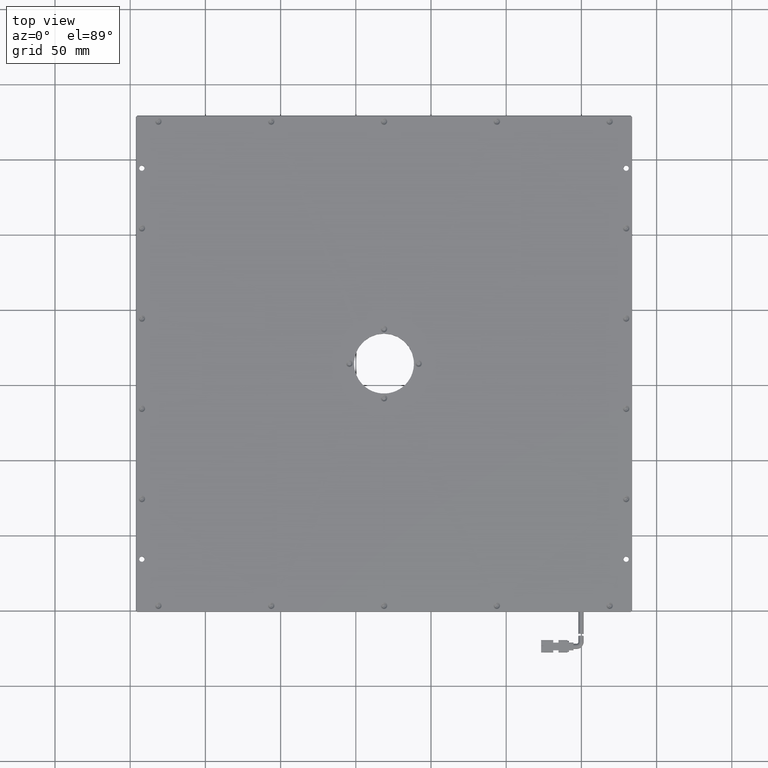
[diagram: clean part render]
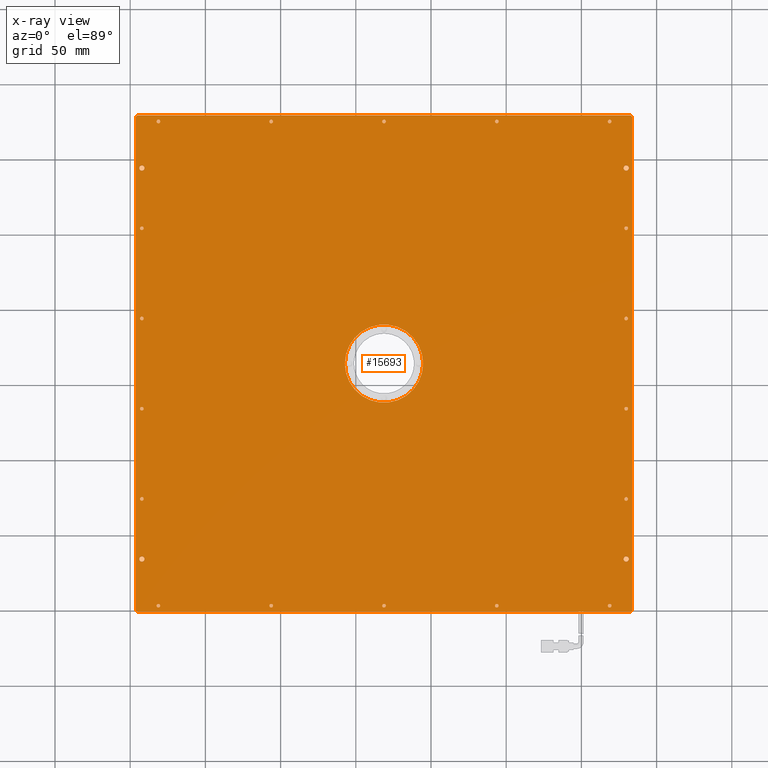
[diagram: x-ray — body ghosted, one internal face saturated and labeled with its STEP entity id]
A machine part, top view, then the same camera in x-ray: the body is ghosted and one INTERNAL B-rep face — a face not visible from any outside direction — is saturated and labeled: STEP entity #15693.
In plain terms, the highlighted planar face has unit normal (0, -0, 1).
Its self-contained STEP definition (entity closure, byte-faithful):
#39 = DIRECTION ( 'NONE',  ( 0.0000000000000000000, 0.0000000000000000000, -1.000000000000000000 ) ) ;
#62 = EDGE_CURVE ( 'NONE', #1056, #24851, #12106, .T. ) ;
#197 = VERTEX_POINT ( 'NONE', #13374 ) ;
#223 = EDGE_CURVE ( 'NONE', #22571, #25613, #29283, .T. ) ;
#523 = FACE_BOUND ( 'NONE', #15671, .T. ) ;
#592 = DIRECTION ( 'NONE',  ( 1.000000000000000000, 0.0000000000000000000, 0.0000000000000000000 ) ) ;
#633 = CIRCLE ( 'NONE', #14719, 1.199999999999978900 ) ;
#697 = CARTESIAN_POINT ( 'NONE',  ( 129.7560923609355300, 94.30657404790598300, 8.000000000019095800 ) ) ;
#736 = AXIS2_PLACEMENT_3D ( 'NONE', #4397, #9231, #9345 ) ;
#917 = ORIENTED_EDGE ( 'NONE', *, *, #9125, .F. ) ;
#962 = DIRECTION ( 'NONE',  ( 1.000000000000000000, 0.0000000000000000000, 0.0000000000000000000 ) ) ;
#981 = EDGE_CURVE ( 'NONE', #26956, #19501, #9583, .T. ) ;
#1056 = VERTEX_POINT ( 'NONE', #27537 ) ;
#1179 = ORIENTED_EDGE ( 'NONE', *, *, #21258, .F. ) ;
#1290 = CIRCLE ( 'NONE', #13173, 1.799999999999996000 ) ;
#1330 = AXIS2_PLACEMENT_3D ( 'NONE', #5066, #2719, #22952 ) ;
#1397 = CARTESIAN_POINT ( 'NONE',  ( 131.5560923609355100, 194.3065740479059700, 8.000000000019099400 ) ) ;
#1399 = CARTESIAN_POINT ( 'NONE',  ( 133.7560923609355300, -99.69342595209396100, 8.000000000019097600 ) ) ;
#1493 = CIRCLE ( 'NONE', #26639, 1.799999999999968300 ) ;
#1548 = CIRCLE ( 'NONE', #24315, 1.199999999999978900 ) ;
#1680 = EDGE_CURVE ( 'NONE', #25613, #22571, #28287, .T. ) ;
#1722 = DIRECTION ( 'NONE',  ( 1.000000000000000000, 0.0000000000000000000, 0.0000000000000000000 ) ) ;
#1789 = EDGE_LOOP ( 'NONE', ( #15808, #22513 ) ) ;
#1811 = DIRECTION ( 'NONE',  ( 0.0000000000000000000, 0.0000000000000000000, -1.000000000000000000 ) ) ;
#1901 = CARTESIAN_POINT ( 'NONE',  ( -195.2439076390644500, -100.6934259520940000, 8.000000000019097600 ) ) ;
#1928 = AXIS2_PLACEMENT_3D ( 'NONE', #31423, #13516, #29215 ) ;
#1938 = VERTEX_POINT ( 'NONE', #7246 ) ;
#1987 = DIRECTION ( 'NONE',  ( 1.000000000000000000, 0.0000000000000000000, 0.0000000000000000000 ) ) ;
#2059 = VERTEX_POINT ( 'NONE', #14988 ) ;
#2142 = ORIENTED_EDGE ( 'NONE', *, *, #3246, .F. ) ;
#2177 = AXIS2_PLACEMENT_3D ( 'NONE', #27355, #27257, #21929 ) ;
#2251 = DIRECTION ( 'NONE',  ( 1.000000000000000000, 0.0000000000000000000, 0.0000000000000000000 ) ) ;
#2397 = CIRCLE ( 'NONE', #19446, 1.199999999999978900 ) ;
#2454 = ORIENTED_EDGE ( 'NONE', *, *, #14842, .F. ) ;
#2562 = AXIS2_PLACEMENT_3D ( 'NONE', #18234, #15857, #23401 ) ;
#2602 = CARTESIAN_POINT ( 'NONE',  ( 129.7560923609355300, 154.3065740479060000, 8.000000000019095800 ) ) ;
#2605 = AXIS2_PLACEMENT_3D ( 'NONE', #22925, #20659, #7640 ) ;
#2719 = DIRECTION ( 'NONE',  ( 0.0000000000000000000, 0.0000000000000000000, -1.000000000000000000 ) ) ;
#2825 = ORIENTED_EDGE ( 'NONE', *, *, #30887, .F. ) ;
#2942 = CARTESIAN_POINT ( 'NONE',  ( 129.7560923609355300, 194.3065740479059700, 8.000000000019099400 ) ) ;
#3017 = VECTOR ( 'NONE', #24300, 1000.000000000000100 ) ;
#3075 = VECTOR ( 'NONE', #11556, 1000.000000000000100 ) ;
#3112 = CIRCLE ( 'NONE', #29573, 1.199999999999992600 ) ;
#3225 = LINE ( 'NONE', #15989, #6077 ) ;
#3246 = EDGE_CURVE ( 'NONE', #12818, #2059, #10815, .T. ) ;
#3249 = AXIS2_PLACEMENT_3D ( 'NONE', #17131, #30080, #1722 ) ;
#3386 = EDGE_CURVE ( 'NONE', #5937, #10006, #11624, .T. ) ;
#3392 = ORIENTED_EDGE ( 'NONE', *, *, #33149, .F. ) ;
#3484 = EDGE_CURVE ( 'NONE', #29194, #11254, #3579, .T. ) ;
#3491 = EDGE_LOOP ( 'NONE', ( #5932, #19338, #18920, #9190, #27096, #2825, #4488, #27738 ) ) ;
#3555 = CARTESIAN_POINT ( 'NONE',  ( -32.44390763906449100, -96.69342595209404600, 8.000000000019095800 ) ) ;
#3579 = CIRCLE ( 'NONE', #4724, 1.199999999999978900 ) ;
#3598 = EDGE_CURVE ( 'NONE', #16537, #11574, #3112, .T. ) ;
#3695 = EDGE_LOOP ( 'NONE', ( #19024, #13416 ) ) ;
#3709 = VERTEX_POINT ( 'NONE', #29868 ) ;
#3734 = VERTEX_POINT ( 'NONE', #17351 ) ;
#3742 = CIRCLE ( 'NONE', #17016, 1.199999999999992600 ) ;
#3782 = CIRCLE ( 'NONE', #16139, 1.199999999999978900 ) ;
#3879 = VERTEX_POINT ( 'NONE', #4642 ) ;
#4057 = ORIENTED_EDGE ( 'NONE', *, *, #14169, .F. ) ;
#4107 = AXIS2_PLACEMENT_3D ( 'NONE', #17916, #23074, #25836 ) ;
#4155 = DIRECTION ( 'NONE',  ( 0.0000000000000000000, 0.0000000000000000000, -1.000000000000000000 ) ) ;
#4171 = CIRCLE ( 'NONE', #1330, 1.199999999999978900 ) ;
#4173 = CARTESIAN_POINT ( 'NONE',  ( -192.2439076390644700, -65.69342595209401700, 8.000000000019099400 ) ) ;
#4180 = FACE_BOUND ( 'NONE', #16607, .T. ) ;
#4226 = DIRECTION ( 'NONE',  ( 0.0000000000000000000, 0.0000000000000000000, -1.000000000000000000 ) ) ;
#4261 = CARTESIAN_POINT ( 'NONE',  ( 133.7560923609355300, -100.6934259520940200, 8.000000000019099400 ) ) ;
#4286 = DIRECTION ( 'NONE',  ( 1.000000000000000000, 0.0000000000000000000, 0.0000000000000000000 ) ) ;
#4361 = VERTEX_POINT ( 'NONE', #11466 ) ;
#4383 = VECTOR ( 'NONE', #15660, 1000.000000000000000 ) ;
#4397 = CARTESIAN_POINT ( 'NONE',  ( 129.7560923609355300, 34.30657404790599000, 8.000000000019095800 ) ) ;
#4410 = DIRECTION ( 'NONE',  ( 1.000000000000000000, 0.0000000000000000000, 0.0000000000000000000 ) ) ;
#4448 = AXIS2_PLACEMENT_3D ( 'NONE', #27133, #4155, #19432 ) ;
#4461 = CARTESIAN_POINT ( 'NONE',  ( 127.9560923609355300, 194.3065740479059700, 8.000000000019099400 ) ) ;
#4488 = ORIENTED_EDGE ( 'NONE', *, *, #17045, .T. ) ;
#4531 = LINE ( 'NONE', #27157, #31340 ) ;
#4537 = DIRECTION ( 'NONE',  ( 0.0000000000000000000, 0.0000000000000000000, -1.000000000000000000 ) ) ;
#4621 = CARTESIAN_POINT ( 'NONE',  ( 42.55609236093550900, -96.69342595209403200, 8.000000000019095800 ) ) ;
#4642 = CARTESIAN_POINT ( 'NONE',  ( -191.0439076390645100, 94.30657404790598300, 8.000000000019095800 ) ) ;
#4724 = AXIS2_PLACEMENT_3D ( 'NONE', #10951, #18592, #5768 ) ;
#4764 = CIRCLE ( 'NONE', #24938, 1.199999999999978900 ) ;
#4776 = CARTESIAN_POINT ( 'NONE',  ( -30.04390763906447500, 225.3065740479060500, 8.000000000019095800 ) ) ;
#4924 = AXIS2_PLACEMENT_3D ( 'NONE', #10123, #5174, #30301 ) ;
#4964 = FACE_BOUND ( 'NONE', #30370, .T. ) ;
#5011 = EDGE_CURVE ( 'NONE', #13324, #26935, #8265, .T. ) ;
#5066 = CARTESIAN_POINT ( 'NONE',  ( -181.2439076390644700, 225.3065740479060500, 8.000000000019095800 ) ) ;
#5174 = DIRECTION ( 'NONE',  ( 0.0000000000000000000, 0.0000000000000000000, -1.000000000000000000 ) ) ;
#5223 = VERTEX_POINT ( 'NONE', #6600 ) ;
#5230 = CARTESIAN_POINT ( 'NONE',  ( 117.5560923609355200, 225.3065740479061100, 8.000000000019095800 ) ) ;
#5264 = VERTEX_POINT ( 'NONE', #27517 ) ;
#5343 = CARTESIAN_POINT ( 'NONE',  ( -192.2439076390644700, 94.30657404790598300, 8.000000000019095800 ) ) ;
#5377 = CARTESIAN_POINT ( 'NONE',  ( -180.0439076390644900, -96.69342595209407400, 8.000000000019095800 ) ) ;
#5380 = FACE_BOUND ( 'NONE', #24946, .T. ) ;
#5408 = EDGE_CURVE ( 'NONE', #22257, #3879, #17853, .T. ) ;
#5553 = AXIS2_PLACEMENT_3D ( 'NONE', #13527, #6018, #592 ) ;
#5592 = CARTESIAN_POINT ( 'NONE',  ( 133.7560923609355300, 229.3065740479060500, 8.000000000019099400 ) ) ;
#5690 = EDGE_CURVE ( 'NONE', #5223, #32564, #26159, .T. ) ;
#5733 = ORIENTED_EDGE ( 'NONE', *, *, #27626, .F. ) ;
#5749 = VERTEX_POINT ( 'NONE', #24590 ) ;
#5768 = DIRECTION ( 'NONE',  ( 1.000000000000000000, 0.0000000000000000000, 0.0000000000000000000 ) ) ;
#5771 = FACE_BOUND ( 'NONE', #25762, .T. ) ;
#5855 = CIRCLE ( 'NONE', #8639, 1.799999999999968300 ) ;
#5932 = ORIENTED_EDGE ( 'NONE', *, *, #24744, .T. ) ;
#5937 = VERTEX_POINT ( 'NONE', #20106 ) ;
#5996 = CARTESIAN_POINT ( 'NONE',  ( 133.7560923609355300, 229.3065740479060500, 8.000000000019099400 ) ) ;
#6018 = DIRECTION ( 'NONE',  ( 0.0000000000000000000, 0.0000000000000000000, -1.000000000000000000 ) ) ;
#6077 = VECTOR ( 'NONE', #26380, 1000.000000000000000 ) ;
#6133 = DIRECTION ( 'NONE',  ( 1.000000000000000000, 0.0000000000000000000, 0.0000000000000000000 ) ) ;
#6194 = ORIENTED_EDGE ( 'NONE', *, *, #7385, .F. ) ;
#6240 = DIRECTION ( 'NONE',  ( 0.0000000000000000000, -0.0000000000000000000, 1.000000000000000000 ) ) ;
#6263 = DIRECTION ( 'NONE',  ( 0.0000000000000000000, 0.0000000000000000000, -1.000000000000000000 ) ) ;
#6600 = CARTESIAN_POINT ( 'NONE',  ( -190.4439076390645200, 194.3065740479059700, 8.000000000019099400 ) ) ;
#6628 = AXIS2_PLACEMENT_3D ( 'NONE', #5343, #39, #25527 ) ;
#6725 = ORIENTED_EDGE ( 'NONE', *, *, #21776, .F. ) ;
#6844 = DIRECTION ( 'NONE',  ( 1.000000000000000000, 0.0000000000000000000, 0.0000000000000000000 ) ) ;
#6928 = ORIENTED_EDGE ( 'NONE', *, *, #25443, .F. ) ;
#6983 = DIRECTION ( 'NONE',  ( 0.0000000000000000000, 0.0000000000000000000, -1.000000000000000000 ) ) ;
#6997 = ORIENTED_EDGE ( 'NONE', *, *, #24396, .F. ) ;
#7030 = CARTESIAN_POINT ( 'NONE',  ( 43.75609236093549700, 225.3065740479061100, 8.000000000019095800 ) ) ;
#7246 = CARTESIAN_POINT ( 'NONE',  ( -190.4439076390645200, -65.69342595209401700, 8.000000000019099400 ) ) ;
#7254 = CARTESIAN_POINT ( 'NONE',  ( -192.2439076390644700, 194.3065740479059700, 8.000000000019099400 ) ) ;
#7318 = CARTESIAN_POINT ( 'NONE',  ( -31.24390763906448100, 225.3065740479060500, 8.000000000019095800 ) ) ;
#7385 = EDGE_CURVE ( 'NONE', #30799, #32704, #633, .T. ) ;
#7484 = DIRECTION ( 'NONE',  ( 1.000000000000000000, 0.0000000000000000000, 0.0000000000000000000 ) ) ;
#7562 = EDGE_CURVE ( 'NONE', #11384, #24082, #17691, .T. ) ;
#7640 = DIRECTION ( 'NONE',  ( 1.000000000000000000, 0.0000000000000000000, 0.0000000000000000000 ) ) ;
#7673 = LINE ( 'NONE', #4261, #28922 ) ;
#7886 = EDGE_LOOP ( 'NONE', ( #2142, #5733 ) ) ;
#7955 = ORIENTED_EDGE ( 'NONE', *, *, #20569, .F. ) ;
#8116 = DIRECTION ( 'NONE',  ( 0.0000000000000000000, 0.0000000000000000000, -1.000000000000000000 ) ) ;
#8235 = AXIS2_PLACEMENT_3D ( 'NONE', #13967, #13629, #26511 ) ;
#8265 = CIRCLE ( 'NONE', #28336, 1.199999999999978900 ) ;
#8432 = EDGE_LOOP ( 'NONE', ( #26321, #6928 ) ) ;
#8586 = EDGE_CURVE ( 'NONE', #31823, #10185, #12348, .T. ) ;
#8599 = ORIENTED_EDGE ( 'NONE', *, *, #14362, .F. ) ;
#8636 = DIRECTION ( 'NONE',  ( 0.0000000000000000000, 0.0000000000000000000, -1.000000000000000000 ) ) ;
#8639 = AXIS2_PLACEMENT_3D ( 'NONE', #4173, #27357, #4286 ) ;
#8730 = LINE ( 'NONE', #24330, #3075 ) ;
#8873 = AXIS2_PLACEMENT_3D ( 'NONE', #2602, #12509, #22830 ) ;
#8967 = EDGE_CURVE ( 'NONE', #24082, #11384, #11118, .T. ) ;
#9069 = VERTEX_POINT ( 'NONE', #17404 ) ;
#9125 = EDGE_CURVE ( 'NONE', #3879, #22257, #15477, .T. ) ;
#9190 = ORIENTED_EDGE ( 'NONE', *, *, #25506, .F. ) ;
#9200 = DIRECTION ( 'NONE',  ( 1.000000000000000000, 0.0000000000000000000, 0.0000000000000000000 ) ) ;
#9231 = DIRECTION ( 'NONE',  ( 0.0000000000000000000, 0.0000000000000000000, -1.000000000000000000 ) ) ;
#9345 = DIRECTION ( 'NONE',  ( 1.000000000000000000, 0.0000000000000000000, 0.0000000000000000000 ) ) ;
#9412 = FACE_BOUND ( 'NONE', #15360, .T. ) ;
#9469 = AXIS2_PLACEMENT_3D ( 'NONE', #30441, #30331, #1987 ) ;
#9526 = CIRCLE ( 'NONE', #18648, 1.799999999999996000 ) ;
#9556 = DIRECTION ( 'NONE',  ( 0.0000000000000000000, 0.0000000000000000000, -1.000000000000000000 ) ) ;
#9583 = CIRCLE ( 'NONE', #32649, 1.200000000000006600 ) ;
#9598 = VERTEX_POINT ( 'NONE', #1397 ) ;
#9727 = ORIENTED_EDGE ( 'NONE', *, *, #19136, .F. ) ;
#9842 = DIRECTION ( 'NONE',  ( 0.0000000000000000000, 0.0000000000000000000, -1.000000000000000000 ) ) ;
#9874 = DIRECTION ( 'NONE',  ( 1.000000000000000000, 0.0000000000000000000, 0.0000000000000000000 ) ) ;
#9919 = DIRECTION ( 'NONE',  ( 1.000000000000000000, 0.0000000000000000000, 0.0000000000000000000 ) ) ;
#10006 = VERTEX_POINT ( 'NONE', #17406 ) ;
#10123 = CARTESIAN_POINT ( 'NONE',  ( -192.2439076390644700, -25.69342595209400700, 8.000000000019095800 ) ) ;
#10128 = EDGE_CURVE ( 'NONE', #31076, #15628, #10921, .T. ) ;
#10154 = ORIENTED_EDGE ( 'NONE', *, *, #15746, .F. ) ;
#10169 = CARTESIAN_POINT ( 'NONE',  ( -181.2439076390644700, -96.69342595209407400, 8.000000000019095800 ) ) ;
#10185 = VERTEX_POINT ( 'NONE', #16243 ) ;
#10220 = AXIS2_PLACEMENT_3D ( 'NONE', #23172, #28276, #28614 ) ;
#10274 = VERTEX_POINT ( 'NONE', #13883 ) ;
#10410 = CARTESIAN_POINT ( 'NONE',  ( 130.9560923609354900, 154.3065740479060000, 8.000000000019095800 ) ) ;
#10435 = DIRECTION ( 'NONE',  ( -1.000000000000000000, -0.0000000000000000000, 0.0000000000000000000 ) ) ;
#10514 = EDGE_CURVE ( 'NONE', #18546, #23287, #27565, .T. ) ;
#10609 = FACE_BOUND ( 'NONE', #26845, .T. ) ;
#10621 = EDGE_CURVE ( 'NONE', #19946, #1938, #1493, .T. ) ;
#10651 = CIRCLE ( 'NONE', #2605, 1.199999999999978900 ) ;
#10671 = CARTESIAN_POINT ( 'NONE',  ( 132.7560923609354700, 229.3065740479060500, 8.000000000019097600 ) ) ;
#10815 = CIRCLE ( 'NONE', #9469, 1.199999999999978900 ) ;
#10816 = EDGE_LOOP ( 'NONE', ( #6194, #14503 ) ) ;
#10839 = ORIENTED_EDGE ( 'NONE', *, *, #62, .F. ) ;
#10921 = CIRCLE ( 'NONE', #5553, 1.200000000000006600 ) ;
#10923 = DIRECTION ( 'NONE',  ( 1.000000000000000000, 0.0000000000000000000, 0.0000000000000000000 ) ) ;
#10951 = CARTESIAN_POINT ( 'NONE',  ( 129.7560923609355300, 94.30657404790598300, 8.000000000019095800 ) ) ;
#10961 = DIRECTION ( 'NONE',  ( -1.000000000000000000, 0.0000000000000000000, 0.0000000000000000000 ) ) ;
#11007 = CIRCLE ( 'NONE', #13783, 1.199999999999978900 ) ;
#11009 = FACE_BOUND ( 'NONE', #29874, .T. ) ;
#11061 = CARTESIAN_POINT ( 'NONE',  ( 42.55609236093550900, 225.3065740479061100, 8.000000000019095800 ) ) ;
#11068 = DIRECTION ( 'NONE',  ( 0.0000000000000000000, 0.0000000000000000000, -1.000000000000000000 ) ) ;
#11118 = CIRCLE ( 'NONE', #14581, 26.00000000000002100 ) ;
#11128 = AXIS2_PLACEMENT_3D ( 'NONE', #14922, #9556, #9874 ) ;
#11140 = CARTESIAN_POINT ( 'NONE',  ( 133.7560923609355300, -99.69342595209396100, 8.000000000019097600 ) ) ;
#11154 = CIRCLE ( 'NONE', #23748, 1.199999999999992600 ) ;
#11254 = VERTEX_POINT ( 'NONE', #27241 ) ;
#11361 = EDGE_CURVE ( 'NONE', #32901, #3709, #19890, .T. ) ;
#11384 = VERTEX_POINT ( 'NONE', #32148 ) ;
#11452 = FACE_BOUND ( 'NONE', #30066, .T. ) ;
#11466 = CARTESIAN_POINT ( 'NONE',  ( -196.2439076390645600, -99.69342595209398900, 8.000000000019097600 ) ) ;
#11556 = DIRECTION ( 'NONE',  ( -0.7071067811865474600, 0.7071067811865474600, 0.0000000000000000000 ) ) ;
#11574 = VERTEX_POINT ( 'NONE', #5230 ) ;
#11609 = LINE ( 'NONE', #13400, #4383 ) ;
#11624 = CIRCLE ( 'NONE', #23657, 1.199999999999978900 ) ;
#11655 = DIRECTION ( 'NONE',  ( -0.7071067811865474600, -0.7071067811865474600, 0.0000000000000000000 ) ) ;
#11670 = ORIENTED_EDGE ( 'NONE', *, *, #22208, .F. ) ;
#11715 = EDGE_LOOP ( 'NONE', ( #12420, #32456 ) ) ;
#11785 = LINE ( 'NONE', #1399, #27378 ) ;
#11838 = FACE_BOUND ( 'NONE', #8432, .T. ) ;
#11926 = ORIENTED_EDGE ( 'NONE', *, *, #19745, .F. ) ;
#12106 = CIRCLE ( 'NONE', #4924, 1.199999999999978900 ) ;
#12149 = AXIS2_PLACEMENT_3D ( 'NONE', #23845, #11068, #26852 ) ;
#12203 = CARTESIAN_POINT ( 'NONE',  ( -106.2439076390644600, 225.3065740479060500, 8.000000000019095800 ) ) ;
#12248 = DIRECTION ( 'NONE',  ( -0.0000000000000000000, -0.0000000000000000000, -1.000000000000000000 ) ) ;
#12343 = CARTESIAN_POINT ( 'NONE',  ( -31.24390763906445700, 64.30657404790599700, 8.000000000019099400 ) ) ;
#12348 = LINE ( 'NONE', #5592, #23575 ) ;
#12420 = ORIENTED_EDGE ( 'NONE', *, *, #981, .F. ) ;
#12509 = DIRECTION ( 'NONE',  ( 0.0000000000000000000, 0.0000000000000000000, -1.000000000000000000 ) ) ;
#12608 = AXIS2_PLACEMENT_3D ( 'NONE', #7030, #4226, #27420 ) ;
#12609 = CARTESIAN_POINT ( 'NONE',  ( -191.0439076390645100, 154.3065740479060000, 8.000000000019095800 ) ) ;
#12818 = VERTEX_POINT ( 'NONE', #12609 ) ;
#12930 = CARTESIAN_POINT ( 'NONE',  ( 130.9560923609354900, -25.69342595209400700, 8.000000000019095800 ) ) ;
#12976 = VERTEX_POINT ( 'NONE', #30945 ) ;
#12979 = DIRECTION ( 'NONE',  ( 1.000000000000000000, 0.0000000000000000000, 0.0000000000000000000 ) ) ;
#13087 = AXIS2_PLACEMENT_3D ( 'NONE', #2942, #8116, #10923 ) ;
#13173 = AXIS2_PLACEMENT_3D ( 'NONE', #19451, #1811, #4410 ) ;
#13266 = CARTESIAN_POINT ( 'NONE',  ( -192.2439076390644700, -65.69342595209401700, 8.000000000019099400 ) ) ;
#13324 = VERTEX_POINT ( 'NONE', #10410 ) ;
#13374 = CARTESIAN_POINT ( 'NONE',  ( 131.5560923609355100, -65.69342595209401700, 8.000000000019099400 ) ) ;
#13400 = CARTESIAN_POINT ( 'NONE',  ( 133.7560923609355300, 229.3065740479060500, 8.000000000019099400 ) ) ;
#13416 = ORIENTED_EDGE ( 'NONE', *, *, #24350, .F. ) ;
#13516 = DIRECTION ( 'NONE',  ( 0.0000000000000000000, 0.0000000000000000000, -1.000000000000000000 ) ) ;
#13527 = CARTESIAN_POINT ( 'NONE',  ( -31.24390763906448100, 225.3065740479060500, 8.000000000019095800 ) ) ;
#13540 = ORIENTED_EDGE ( 'NONE', *, *, #23258, .F. ) ;
#13629 = DIRECTION ( 'NONE',  ( 0.0000000000000000000, 0.0000000000000000000, -1.000000000000000000 ) ) ;
#13758 = DIRECTION ( 'NONE',  ( 1.000000000000000000, 0.0000000000000000000, 0.0000000000000000000 ) ) ;
#13783 = AXIS2_PLACEMENT_3D ( 'NONE', #697, #16336, #6133 ) ;
#13805 = CARTESIAN_POINT ( 'NONE',  ( -31.24390763906448100, -96.69342595209404600, 8.000000000019095800 ) ) ;
#13883 = CARTESIAN_POINT ( 'NONE',  ( -180.0439076390644900, 225.3065740479060500, 8.000000000019095800 ) ) ;
#13967 = CARTESIAN_POINT ( 'NONE',  ( -106.2439076390644600, 225.3065740479060500, 8.000000000019095800 ) ) ;
#14070 = VERTEX_POINT ( 'NONE', #11061 ) ;
#14169 = EDGE_CURVE ( 'NONE', #28700, #5749, #1548, .T. ) ;
#14192 = CIRCLE ( 'NONE', #21827, 1.200000000000006600 ) ;
#14345 = CARTESIAN_POINT ( 'NONE',  ( -194.0439076390644600, 194.3065740479059700, 8.000000000019099400 ) ) ;
#14348 = DIRECTION ( 'NONE',  ( 0.0000000000000000000, 0.0000000000000000000, -1.000000000000000000 ) ) ;
#14362 = EDGE_CURVE ( 'NONE', #23595, #30337, #4764, .T. ) ;
#14500 = ORIENTED_EDGE ( 'NONE', *, *, #11361, .F. ) ;
#14503 = ORIENTED_EDGE ( 'NONE', *, *, #23188, .F. ) ;
#14581 = AXIS2_PLACEMENT_3D ( 'NONE', #12343, #12248, #30128 ) ;
#14719 = AXIS2_PLACEMENT_3D ( 'NONE', #10169, #19970, #7484 ) ;
#14842 = EDGE_CURVE ( 'NONE', #1938, #19946, #5855, .T. ) ;
#14847 = CARTESIAN_POINT ( 'NONE',  ( -191.0439076390645100, -25.69342595209400700, 8.000000000019095800 ) ) ;
#14888 = CARTESIAN_POINT ( 'NONE',  ( -182.4439076390644600, -96.69342595209407400, 8.000000000019095800 ) ) ;
#14922 = CARTESIAN_POINT ( 'NONE',  ( -181.2439076390644700, 225.3065740479060500, 8.000000000019095800 ) ) ;
#14965 = CARTESIAN_POINT ( 'NONE',  ( 129.7560923609355300, 34.30657404790599000, 8.000000000019095800 ) ) ;
#14988 = CARTESIAN_POINT ( 'NONE',  ( -193.4439076390644600, 154.3065740479060000, 8.000000000019095800 ) ) ;
#15023 = FACE_OUTER_BOUND ( 'NONE', #3491, .T. ) ;
#15064 = VERTEX_POINT ( 'NONE', #28666 ) ;
#15069 = DIRECTION ( 'NONE',  ( 0.0000000000000000000, 0.0000000000000000000, -1.000000000000000000 ) ) ;
#15360 = EDGE_LOOP ( 'NONE', ( #29199, #27659 ) ) ;
#15477 = CIRCLE ( 'NONE', #6628, 1.199999999999978900 ) ;
#15628 = VERTEX_POINT ( 'NONE', #28404 ) ;
#15643 = EDGE_CURVE ( 'NONE', #5749, #28700, #33020, .T. ) ;
#15644 = EDGE_LOOP ( 'NONE', ( #7955, #17646 ) ) ;
#15660 = DIRECTION ( 'NONE',  ( 0.0000000000000000000, 1.000000000000000000, 0.0000000000000000000 ) ) ;
#15671 = EDGE_LOOP ( 'NONE', ( #2454, #25062 ) ) ;
#15693 = ADVANCED_FACE ( 'NONE', ( #15023, #11452, #25430, #11838, #9412, #23060, #31039, #10609, #30622, #29845, #4180, #19456, #17850, #29462, #5380, #18261, #11009, #4964, #17053, #5771, #21054, #28633, #523, #22278 ), #18926, .F. ) ;
#15739 = ORIENTED_EDGE ( 'NONE', *, *, #8967, .F. ) ;
#15746 = EDGE_CURVE ( 'NONE', #3734, #26252, #18228, .T. ) ;
#15771 = CARTESIAN_POINT ( 'NONE',  ( -107.4439076390644500, -96.69342595209406000, 8.000000000019095800 ) ) ;
#15808 = ORIENTED_EDGE ( 'NONE', *, *, #24553, .F. ) ;
#15857 = DIRECTION ( 'NONE',  ( 0.0000000000000000000, 0.0000000000000000000, -1.000000000000000000 ) ) ;
#15989 = CARTESIAN_POINT ( 'NONE',  ( 132.7560923609354700, 229.3065740479060500, 8.000000000019097600 ) ) ;
#16028 = DIRECTION ( 'NONE',  ( 1.000000000000000000, 0.0000000000000000000, 0.0000000000000000000 ) ) ;
#16139 = AXIS2_PLACEMENT_3D ( 'NONE', #26783, #29131, #21667 ) ;
#16243 = CARTESIAN_POINT ( 'NONE',  ( -195.2439076390645600, 229.3065740479060000, 8.000000000019097600 ) ) ;
#16312 = CARTESIAN_POINT ( 'NONE',  ( 128.5560923609355400, -25.69342595209400700, 8.000000000019095800 ) ) ;
#16334 = DIRECTION ( 'NONE',  ( 1.000000000000000000, 0.0000000000000000000, -0.0000000000000000000 ) ) ;
#16336 = DIRECTION ( 'NONE',  ( 0.0000000000000000000, 0.0000000000000000000, -1.000000000000000000 ) ) ;
#16438 = DIRECTION ( 'NONE',  ( 0.0000000000000000000, 0.0000000000000000000, -1.000000000000000000 ) ) ;
#16453 = DIRECTION ( 'NONE',  ( 0.0000000000000000000, 0.0000000000000000000, -1.000000000000000000 ) ) ;
#16509 = EDGE_CURVE ( 'NONE', #30337, #23595, #29996, .T. ) ;
#16537 = VERTEX_POINT ( 'NONE', #27354 ) ;
#16607 = EDGE_LOOP ( 'NONE', ( #24370, #14500 ) ) ;
#16686 = CARTESIAN_POINT ( 'NONE',  ( 129.7560923609355300, -65.69342595209401700, 8.000000000019099400 ) ) ;
#16767 = CARTESIAN_POINT ( 'NONE',  ( 130.9560923609354900, 34.30657404790599000, 8.000000000019095800 ) ) ;
#16914 = ORIENTED_EDGE ( 'NONE', *, *, #27877, .F. ) ;
#17016 = AXIS2_PLACEMENT_3D ( 'NONE', #17070, #14348, #9200 ) ;
#17045 = EDGE_CURVE ( 'NONE', #32245, #4361, #8730, .T. ) ;
#17053 = FACE_BOUND ( 'NONE', #1789, .T. ) ;
#17070 = CARTESIAN_POINT ( 'NONE',  ( 43.75609236093549700, -96.69342595209403200, 8.000000000019095800 ) ) ;
#17131 = CARTESIAN_POINT ( 'NONE',  ( 43.75609236093549700, 225.3065740479061100, 8.000000000019095800 ) ) ;
#17171 = ORIENTED_EDGE ( 'NONE', *, *, #3386, .F. ) ;
#17243 = AXIS2_PLACEMENT_3D ( 'NONE', #16686, #32200, #22082 ) ;
#17351 = CARTESIAN_POINT ( 'NONE',  ( 44.95609236093549300, -96.69342595209403200, 8.000000000019095800 ) ) ;
#17361 = CIRCLE ( 'NONE', #12608, 1.199999999999992600 ) ;
#17404 = CARTESIAN_POINT ( 'NONE',  ( -182.4439076390644600, 225.3065740479060500, 8.000000000019095800 ) ) ;
#17406 = CARTESIAN_POINT ( 'NONE',  ( -191.0439076390645100, 34.30657404790599000, 8.000000000019095800 ) ) ;
#17433 = DIRECTION ( 'NONE',  ( 1.000000000000000000, 0.0000000000000000000, 0.0000000000000000000 ) ) ;
#17523 = CARTESIAN_POINT ( 'NONE',  ( 118.7560923609355100, -96.69342595209401700, 8.000000000019095800 ) ) ;
#17646 = ORIENTED_EDGE ( 'NONE', *, *, #28538, .F. ) ;
#17691 = CIRCLE ( 'NONE', #20520, 26.00000000000002100 ) ;
#17850 = FACE_BOUND ( 'NONE', #21508, .T. ) ;
#17853 = CIRCLE ( 'NONE', #4107, 1.199999999999978900 ) ;
#17855 = DIRECTION ( 'NONE',  ( 0.0000000000000000000, 0.0000000000000000000, -1.000000000000000000 ) ) ;
#17916 = CARTESIAN_POINT ( 'NONE',  ( -192.2439076390644700, 94.30657404790598300, 8.000000000019095800 ) ) ;
#18051 = EDGE_CURVE ( 'NONE', #22440, #12976, #11785, .T. ) ;
#18138 = ORIENTED_EDGE ( 'NONE', *, *, #7562, .F. ) ;
#18228 = CIRCLE ( 'NONE', #12149, 1.199999999999992600 ) ;
#18234 = CARTESIAN_POINT ( 'NONE',  ( 129.7560923609355300, -25.69342595209400700, 8.000000000019095800 ) ) ;
#18261 = FACE_BOUND ( 'NONE', #22610, .T. ) ;
#18289 = CARTESIAN_POINT ( 'NONE',  ( 128.5560923609355400, 154.3065740479060000, 8.000000000019095800 ) ) ;
#18368 = DIRECTION ( 'NONE',  ( 0.0000000000000000000, 0.0000000000000000000, -1.000000000000000000 ) ) ;
#18546 = VERTEX_POINT ( 'NONE', #16312 ) ;
#18592 = DIRECTION ( 'NONE',  ( 0.0000000000000000000, 0.0000000000000000000, -1.000000000000000000 ) ) ;
#18648 = AXIS2_PLACEMENT_3D ( 'NONE', #20494, #18368, #12979 ) ;
#18920 = ORIENTED_EDGE ( 'NONE', *, *, #31362, .T. ) ;
#18926 = PLANE ( 'NONE',  #28384 ) ;
#18928 = CARTESIAN_POINT ( 'NONE',  ( 129.7560923609355300, -25.69342595209400700, 8.000000000019095800 ) ) ;
#19024 = ORIENTED_EDGE ( 'NONE', *, *, #5690, .F. ) ;
#19073 = CIRCLE ( 'NONE', #3249, 1.199999999999992600 ) ;
#19136 = EDGE_CURVE ( 'NONE', #26252, #3734, #3742, .T. ) ;
#19240 = DIRECTION ( 'NONE',  ( 1.000000000000000000, 0.0000000000000000000, 0.0000000000000000000 ) ) ;
#19338 = ORIENTED_EDGE ( 'NONE', *, *, #8586, .F. ) ;
#19432 = DIRECTION ( 'NONE',  ( 1.000000000000000000, 0.0000000000000000000, 0.0000000000000000000 ) ) ;
#19446 = AXIS2_PLACEMENT_3D ( 'NONE', #32732, #4537, #22823 ) ;
#19451 = CARTESIAN_POINT ( 'NONE',  ( 129.7560923609355300, 194.3065740479059700, 8.000000000019099400 ) ) ;
#19456 = FACE_BOUND ( 'NONE', #29685, .T. ) ;
#19501 = VERTEX_POINT ( 'NONE', #3555 ) ;
#19546 = CARTESIAN_POINT ( 'NONE',  ( 128.5560923609355400, 34.30657404790599000, 8.000000000019095800 ) ) ;
#19644 = DIRECTION ( 'NONE',  ( 0.0000000000000000000, 0.0000000000000000000, -1.000000000000000000 ) ) ;
#19677 = DIRECTION ( 'NONE',  ( -0.0000000000000000000, -1.000000000000000000, -0.0000000000000000000 ) ) ;
#19745 = EDGE_CURVE ( 'NONE', #14070, #23059, #17361, .T. ) ;
#19890 = CIRCLE ( 'NONE', #4448, 1.199999999999992600 ) ;
#19938 = AXIS2_PLACEMENT_3D ( 'NONE', #18928, #28975, #31527 ) ;
#19946 = VERTEX_POINT ( 'NONE', #25606 ) ;
#19970 = DIRECTION ( 'NONE',  ( 0.0000000000000000000, 0.0000000000000000000, -1.000000000000000000 ) ) ;
#20106 = CARTESIAN_POINT ( 'NONE',  ( -193.4439076390644600, 34.30657404790599000, 8.000000000019095800 ) ) ;
#20402 = ORIENTED_EDGE ( 'NONE', *, *, #3484, .F. ) ;
#20439 = CIRCLE ( 'NONE', #11128, 1.199999999999978900 ) ;
#20494 = CARTESIAN_POINT ( 'NONE',  ( 129.7560923609355300, -65.69342595209401700, 8.000000000019099400 ) ) ;
#20502 = EDGE_LOOP ( 'NONE', ( #3392, #11926 ) ) ;
#20520 = AXIS2_PLACEMENT_3D ( 'NONE', #23743, #28744, #10961 ) ;
#20569 = EDGE_CURVE ( 'NONE', #9598, #27340, #24772, .T. ) ;
#20659 = DIRECTION ( 'NONE',  ( 0.0000000000000000000, 0.0000000000000000000, -1.000000000000000000 ) ) ;
#21054 = FACE_BOUND ( 'NONE', #15644, .T. ) ;
#21084 = CARTESIAN_POINT ( 'NONE',  ( -106.2439076390644600, -96.69342595209406000, 8.000000000019095800 ) ) ;
#21143 = CARTESIAN_POINT ( 'NONE',  ( 133.7560923609355300, 228.3065740479060500, 8.000000000019097600 ) ) ;
#21162 = DIRECTION ( 'NONE',  ( 0.0000000000000000000, 0.0000000000000000000, -1.000000000000000000 ) ) ;
#21194 = AXIS2_PLACEMENT_3D ( 'NONE', #7254, #9842, #27749 ) ;
#21258 = EDGE_CURVE ( 'NONE', #24851, #1056, #3782, .T. ) ;
#21375 = AXIS2_PLACEMENT_3D ( 'NONE', #21084, #8636, #16028 ) ;
#21508 = EDGE_LOOP ( 'NONE', ( #24888, #11670 ) ) ;
#21556 = CARTESIAN_POINT ( 'NONE',  ( -57.24390763906448100, 64.30657404790599700, 8.000000000019099400 ) ) ;
#21667 = DIRECTION ( 'NONE',  ( 1.000000000000000000, 0.0000000000000000000, 0.0000000000000000000 ) ) ;
#21776 = EDGE_CURVE ( 'NONE', #11254, #29194, #11007, .T. ) ;
#21827 = AXIS2_PLACEMENT_3D ( 'NONE', #30482, #6983, #17433 ) ;
#21860 = CARTESIAN_POINT ( 'NONE',  ( 118.7560923609355100, 225.3065740479061100, 8.000000000019095800 ) ) ;
#21916 = EDGE_CURVE ( 'NONE', #197, #5264, #23057, .T. ) ;
#21929 = DIRECTION ( 'NONE',  ( 1.000000000000000000, 0.0000000000000000000, 0.0000000000000000000 ) ) ;
#22070 = EDGE_LOOP ( 'NONE', ( #26566, #6997 ) ) ;
#22082 = DIRECTION ( 'NONE',  ( 1.000000000000000000, 0.0000000000000000000, 0.0000000000000000000 ) ) ;
#22208 = EDGE_CURVE ( 'NONE', #26935, #13324, #26230, .T. ) ;
#22257 = VERTEX_POINT ( 'NONE', #30618 ) ;
#22278 = FACE_BOUND ( 'NONE', #3695, .T. ) ;
#22440 = VERTEX_POINT ( 'NONE', #11140 ) ;
#22513 = ORIENTED_EDGE ( 'NONE', *, *, #10514, .F. ) ;
#22571 = VERTEX_POINT ( 'NONE', #27793 ) ;
#22610 = EDGE_LOOP ( 'NONE', ( #917, #26525 ) ) ;
#22722 = LINE ( 'NONE', #31981, #3017 ) ;
#22823 = DIRECTION ( 'NONE',  ( 1.000000000000000000, 0.0000000000000000000, 0.0000000000000000000 ) ) ;
#22830 = DIRECTION ( 'NONE',  ( 1.000000000000000000, 0.0000000000000000000, 0.0000000000000000000 ) ) ;
#22835 = AXIS2_PLACEMENT_3D ( 'NONE', #31750, #16438, #28845 ) ;
#22885 = AXIS2_PLACEMENT_3D ( 'NONE', #7318, #15069, #2251 ) ;
#22925 = CARTESIAN_POINT ( 'NONE',  ( -192.2439076390644700, 34.30657404790599000, 8.000000000019095800 ) ) ;
#22952 = DIRECTION ( 'NONE',  ( 1.000000000000000000, 0.0000000000000000000, 0.0000000000000000000 ) ) ;
#23057 = CIRCLE ( 'NONE', #17243, 1.799999999999996000 ) ;
#23059 = VERTEX_POINT ( 'NONE', #29536 ) ;
#23060 = FACE_BOUND ( 'NONE', #29538, .T. ) ;
#23074 = DIRECTION ( 'NONE',  ( 0.0000000000000000000, 0.0000000000000000000, -1.000000000000000000 ) ) ;
#23172 = CARTESIAN_POINT ( 'NONE',  ( 118.7560923609355100, 225.3065740479061100, 8.000000000019095800 ) ) ;
#23188 = EDGE_CURVE ( 'NONE', #32704, #30799, #2397, .T. ) ;
#23212 = CIRCLE ( 'NONE', #10220, 1.199999999999992600 ) ;
#23258 = EDGE_CURVE ( 'NONE', #15628, #31076, #27283, .T. ) ;
#23287 = VERTEX_POINT ( 'NONE', #12930 ) ;
#23401 = DIRECTION ( 'NONE',  ( 1.000000000000000000, 0.0000000000000000000, 0.0000000000000000000 ) ) ;
#23424 = CARTESIAN_POINT ( 'NONE',  ( -192.2439076390644700, 34.30657404790599000, 8.000000000019095800 ) ) ;
#23575 = VECTOR ( 'NONE', #10435, 1000.000000000000000 ) ;
#23595 = VERTEX_POINT ( 'NONE', #19546 ) ;
#23607 = DIRECTION ( 'NONE',  ( 0.0000000000000000000, 0.0000000000000000000, -1.000000000000000000 ) ) ;
#23657 = AXIS2_PLACEMENT_3D ( 'NONE', #23424, #21162, #26167 ) ;
#23743 = CARTESIAN_POINT ( 'NONE',  ( -31.24390763906445700, 64.30657404790599700, 8.000000000019099400 ) ) ;
#23748 = AXIS2_PLACEMENT_3D ( 'NONE', #17523, #17855, #32800 ) ;
#23802 = EDGE_CURVE ( 'NONE', #3709, #32901, #11154, .T. ) ;
#23845 = CARTESIAN_POINT ( 'NONE',  ( 43.75609236093549700, -96.69342595209403200, 8.000000000019095800 ) ) ;
#24082 = VERTEX_POINT ( 'NONE', #21556 ) ;
#24300 = DIRECTION ( 'NONE',  ( 0.7071067811865474600, 0.7071067811865474600, 0.0000000000000000000 ) ) ;
#24315 = AXIS2_PLACEMENT_3D ( 'NONE', #12203, #24959, #19240 ) ;
#24328 = CIRCLE ( 'NONE', #19938, 1.199999999999978900 ) ;
#24330 = CARTESIAN_POINT ( 'NONE',  ( -195.2439076390645000, -100.6934259520940000, 8.000000000019097600 ) ) ;
#24350 = EDGE_CURVE ( 'NONE', #32564, #5223, #31931, .T. ) ;
#24370 = ORIENTED_EDGE ( 'NONE', *, *, #23802, .F. ) ;
#24396 = EDGE_CURVE ( 'NONE', #5264, #197, #9526, .T. ) ;
#24553 = EDGE_CURVE ( 'NONE', #23287, #18546, #24328, .T. ) ;
#24590 = CARTESIAN_POINT ( 'NONE',  ( -107.4439076390644500, 225.3065740479060500, 8.000000000019095800 ) ) ;
#24744 = EDGE_CURVE ( 'NONE', #15064, #10185, #22722, .T. ) ;
#24772 = CIRCLE ( 'NONE', #13087, 1.799999999999996000 ) ;
#24851 = VERTEX_POINT ( 'NONE', #14847 ) ;
#24888 = ORIENTED_EDGE ( 'NONE', *, *, #5011, .F. ) ;
#24919 = CARTESIAN_POINT ( 'NONE',  ( -105.0439076390644900, 225.3065740479060500, 8.000000000019095800 ) ) ;
#24938 = AXIS2_PLACEMENT_3D ( 'NONE', #14965, #30402, #9919 ) ;
#24946 = EDGE_LOOP ( 'NONE', ( #6725, #20402 ) ) ;
#24959 = DIRECTION ( 'NONE',  ( 0.0000000000000000000, 0.0000000000000000000, -1.000000000000000000 ) ) ;
#25062 = ORIENTED_EDGE ( 'NONE', *, *, #10621, .F. ) ;
#25391 = ORIENTED_EDGE ( 'NONE', *, *, #30146, .F. ) ;
#25430 = FACE_BOUND ( 'NONE', #10816, .T. ) ;
#25443 = EDGE_CURVE ( 'NONE', #9069, #10274, #20439, .T. ) ;
#25506 = EDGE_CURVE ( 'NONE', #22440, #25955, #11609, .T. ) ;
#25527 = DIRECTION ( 'NONE',  ( 1.000000000000000000, 0.0000000000000000000, 0.0000000000000000000 ) ) ;
#25606 = CARTESIAN_POINT ( 'NONE',  ( -194.0439076390644600, -65.69342595209401700, 8.000000000019099400 ) ) ;
#25613 = VERTEX_POINT ( 'NONE', #15771 ) ;
#25633 = CARTESIAN_POINT ( 'NONE',  ( 117.5560923609355200, -96.69342595209401700, 8.000000000019095800 ) ) ;
#25762 = EDGE_LOOP ( 'NONE', ( #1179, #10839 ) ) ;
#25836 = DIRECTION ( 'NONE',  ( 1.000000000000000000, 0.0000000000000000000, 0.0000000000000000000 ) ) ;
#25955 = VERTEX_POINT ( 'NONE', #21143 ) ;
#25968 = CARTESIAN_POINT ( 'NONE',  ( -30.04390763906447500, -96.69342595209404600, 8.000000000019095800 ) ) ;
#26159 = CIRCLE ( 'NONE', #2177, 1.799999999999968300 ) ;
#26167 = DIRECTION ( 'NONE',  ( 1.000000000000000000, 0.0000000000000000000, 0.0000000000000000000 ) ) ;
#26230 = CIRCLE ( 'NONE', #8873, 1.199999999999978900 ) ;
#26252 = VERTEX_POINT ( 'NONE', #4621 ) ;
#26321 = ORIENTED_EDGE ( 'NONE', *, *, #28234, .F. ) ;
#26380 = DIRECTION ( 'NONE',  ( 0.7071067811865672200, -0.7071067811865279200, 0.0000000000000000000 ) ) ;
#26511 = DIRECTION ( 'NONE',  ( 1.000000000000000000, 0.0000000000000000000, 0.0000000000000000000 ) ) ;
#26525 = ORIENTED_EDGE ( 'NONE', *, *, #5408, .F. ) ;
#26566 = ORIENTED_EDGE ( 'NONE', *, *, #21916, .F. ) ;
#26639 = AXIS2_PLACEMENT_3D ( 'NONE', #13266, #23607, #31172 ) ;
#26672 = ORIENTED_EDGE ( 'NONE', *, *, #15643, .F. ) ;
#26783 = CARTESIAN_POINT ( 'NONE',  ( -192.2439076390644700, -25.69342595209400700, 8.000000000019095800 ) ) ;
#26845 = EDGE_LOOP ( 'NONE', ( #30480, #13540 ) ) ;
#26852 = DIRECTION ( 'NONE',  ( 1.000000000000000000, 0.0000000000000000000, 0.0000000000000000000 ) ) ;
#26935 = VERTEX_POINT ( 'NONE', #18289 ) ;
#26956 = VERTEX_POINT ( 'NONE', #25968 ) ;
#27096 = ORIENTED_EDGE ( 'NONE', *, *, #18051, .T. ) ;
#27133 = CARTESIAN_POINT ( 'NONE',  ( 118.7560923609355100, -96.69342595209401700, 8.000000000019095800 ) ) ;
#27157 = CARTESIAN_POINT ( 'NONE',  ( -196.2439076390645600, 229.3065740479060500, 8.000000000019099400 ) ) ;
#27241 = CARTESIAN_POINT ( 'NONE',  ( 130.9560923609354900, 94.30657404790598300, 8.000000000019095800 ) ) ;
#27257 = DIRECTION ( 'NONE',  ( 0.0000000000000000000, 0.0000000000000000000, -1.000000000000000000 ) ) ;
#27283 = CIRCLE ( 'NONE', #22885, 1.200000000000006600 ) ;
#27340 = VERTEX_POINT ( 'NONE', #4461 ) ;
#27354 = CARTESIAN_POINT ( 'NONE',  ( 119.9560923609355000, 225.3065740479061100, 8.000000000019095800 ) ) ;
#27355 = CARTESIAN_POINT ( 'NONE',  ( -192.2439076390644700, 194.3065740479059700, 8.000000000019099400 ) ) ;
#27357 = DIRECTION ( 'NONE',  ( 0.0000000000000000000, 0.0000000000000000000, -1.000000000000000000 ) ) ;
#27378 = VECTOR ( 'NONE', #11655, 1000.000000000000100 ) ;
#27420 = DIRECTION ( 'NONE',  ( 1.000000000000000000, 0.0000000000000000000, 0.0000000000000000000 ) ) ;
#27517 = CARTESIAN_POINT ( 'NONE',  ( 127.9560923609355300, -65.69342595209401700, 8.000000000019099400 ) ) ;
#27537 = CARTESIAN_POINT ( 'NONE',  ( -193.4439076390644600, -25.69342595209400700, 8.000000000019095800 ) ) ;
#27565 = CIRCLE ( 'NONE', #2562, 1.199999999999978900 ) ;
#27626 = EDGE_CURVE ( 'NONE', #2059, #12818, #28108, .T. ) ;
#27659 = ORIENTED_EDGE ( 'NONE', *, *, #1680, .F. ) ;
#27666 = ORIENTED_EDGE ( 'NONE', *, *, #3598, .F. ) ;
#27738 = ORIENTED_EDGE ( 'NONE', *, *, #28529, .F. ) ;
#27749 = DIRECTION ( 'NONE',  ( 1.000000000000000000, 0.0000000000000000000, 0.0000000000000000000 ) ) ;
#27793 = CARTESIAN_POINT ( 'NONE',  ( -105.0439076390644900, -96.69342595209406000, 8.000000000019095800 ) ) ;
#27877 = EDGE_CURVE ( 'NONE', #10006, #5937, #10651, .T. ) ;
#28108 = CIRCLE ( 'NONE', #22835, 1.199999999999978900 ) ;
#28234 = EDGE_CURVE ( 'NONE', #10274, #9069, #4171, .T. ) ;
#28276 = DIRECTION ( 'NONE',  ( 0.0000000000000000000, 0.0000000000000000000, -1.000000000000000000 ) ) ;
#28287 = CIRCLE ( 'NONE', #21375, 1.199999999999978900 ) ;
#28336 = AXIS2_PLACEMENT_3D ( 'NONE', #31332, #6263, #962 ) ;
#28384 = AXIS2_PLACEMENT_3D ( 'NONE', #5996, #6240, #16334 ) ;
#28404 = CARTESIAN_POINT ( 'NONE',  ( -32.44390763906449100, 225.3065740479060500, 8.000000000019095800 ) ) ;
#28529 = EDGE_CURVE ( 'NONE', #15064, #4361, #4531, .T. ) ;
#28538 = EDGE_CURVE ( 'NONE', #27340, #9598, #1290, .T. ) ;
#28614 = DIRECTION ( 'NONE',  ( 1.000000000000000000, 0.0000000000000000000, 0.0000000000000000000 ) ) ;
#28633 = FACE_BOUND ( 'NONE', #22070, .T. ) ;
#28666 = CARTESIAN_POINT ( 'NONE',  ( -196.2439076390645600, 228.3065740479059400, 8.000000000019097600 ) ) ;
#28673 = EDGE_CURVE ( 'NONE', #19501, #26956, #14192, .T. ) ;
#28700 = VERTEX_POINT ( 'NONE', #24919 ) ;
#28744 = DIRECTION ( 'NONE',  ( -0.0000000000000000000, -0.0000000000000000000, -1.000000000000000000 ) ) ;
#28845 = DIRECTION ( 'NONE',  ( 1.000000000000000000, 0.0000000000000000000, 0.0000000000000000000 ) ) ;
#28922 = VECTOR ( 'NONE', #32026, 1000.000000000000000 ) ;
#28975 = DIRECTION ( 'NONE',  ( 0.0000000000000000000, 0.0000000000000000000, -1.000000000000000000 ) ) ;
#29131 = DIRECTION ( 'NONE',  ( 0.0000000000000000000, 0.0000000000000000000, -1.000000000000000000 ) ) ;
#29194 = VERTEX_POINT ( 'NONE', #30025 ) ;
#29199 = ORIENTED_EDGE ( 'NONE', *, *, #223, .F. ) ;
#29215 = DIRECTION ( 'NONE',  ( 1.000000000000000000, 0.0000000000000000000, 0.0000000000000000000 ) ) ;
#29283 = CIRCLE ( 'NONE', #1928, 1.199999999999978900 ) ;
#29462 = FACE_BOUND ( 'NONE', #7886, .T. ) ;
#29536 = CARTESIAN_POINT ( 'NONE',  ( 44.95609236093549300, 225.3065740479061100, 8.000000000019095800 ) ) ;
#29538 = EDGE_LOOP ( 'NONE', ( #4057, #26672 ) ) ;
#29573 = AXIS2_PLACEMENT_3D ( 'NONE', #21860, #16453, #13758 ) ;
#29641 = ORIENTED_EDGE ( 'NONE', *, *, #16509, .F. ) ;
#29685 = EDGE_LOOP ( 'NONE', ( #27666, #25391 ) ) ;
#29845 = FACE_BOUND ( 'NONE', #20502, .T. ) ;
#29868 = CARTESIAN_POINT ( 'NONE',  ( 119.9560923609355000, -96.69342595209401700, 8.000000000019095800 ) ) ;
#29874 = EDGE_LOOP ( 'NONE', ( #29641, #8599 ) ) ;
#29996 = CIRCLE ( 'NONE', #736, 1.199999999999978900 ) ;
#30025 = CARTESIAN_POINT ( 'NONE',  ( 128.5560923609355400, 94.30657404790598300, 8.000000000019095800 ) ) ;
#30066 = EDGE_LOOP ( 'NONE', ( #15739, #18138 ) ) ;
#30080 = DIRECTION ( 'NONE',  ( 0.0000000000000000000, 0.0000000000000000000, -1.000000000000000000 ) ) ;
#30128 = DIRECTION ( 'NONE',  ( -1.000000000000000000, 0.0000000000000000000, 0.0000000000000000000 ) ) ;
#30146 = EDGE_CURVE ( 'NONE', #11574, #16537, #23212, .T. ) ;
#30301 = DIRECTION ( 'NONE',  ( 1.000000000000000000, 0.0000000000000000000, 0.0000000000000000000 ) ) ;
#30331 = DIRECTION ( 'NONE',  ( 0.0000000000000000000, 0.0000000000000000000, -1.000000000000000000 ) ) ;
#30337 = VERTEX_POINT ( 'NONE', #16767 ) ;
#30370 = EDGE_LOOP ( 'NONE', ( #16914, #17171 ) ) ;
#30402 = DIRECTION ( 'NONE',  ( 0.0000000000000000000, 0.0000000000000000000, -1.000000000000000000 ) ) ;
#30441 = CARTESIAN_POINT ( 'NONE',  ( -192.2439076390644700, 154.3065740479060000, 8.000000000019095800 ) ) ;
#30480 = ORIENTED_EDGE ( 'NONE', *, *, #10128, .F. ) ;
#30482 = CARTESIAN_POINT ( 'NONE',  ( -31.24390763906448100, -96.69342595209404600, 8.000000000019095800 ) ) ;
#30618 = CARTESIAN_POINT ( 'NONE',  ( -193.4439076390644600, 94.30657404790598300, 8.000000000019095800 ) ) ;
#30622 = FACE_BOUND ( 'NONE', #30958, .T. ) ;
#30799 = VERTEX_POINT ( 'NONE', #5377 ) ;
#30887 = EDGE_CURVE ( 'NONE', #32245, #12976, #7673, .T. ) ;
#30945 = CARTESIAN_POINT ( 'NONE',  ( 132.7560923609355000, -100.6934259520939700, 8.000000000019097600 ) ) ;
#30958 = EDGE_LOOP ( 'NONE', ( #10154, #9727 ) ) ;
#31039 = FACE_BOUND ( 'NONE', #11715, .T. ) ;
#31076 = VERTEX_POINT ( 'NONE', #4776 ) ;
#31172 = DIRECTION ( 'NONE',  ( 1.000000000000000000, 0.0000000000000000000, 0.0000000000000000000 ) ) ;
#31332 = CARTESIAN_POINT ( 'NONE',  ( 129.7560923609355300, 154.3065740479060000, 8.000000000019095800 ) ) ;
#31340 = VECTOR ( 'NONE', #19677, 1000.000000000000000 ) ;
#31362 = EDGE_CURVE ( 'NONE', #31823, #25955, #3225, .T. ) ;
#31423 = CARTESIAN_POINT ( 'NONE',  ( -106.2439076390644600, -96.69342595209406000, 8.000000000019095800 ) ) ;
#31527 = DIRECTION ( 'NONE',  ( 1.000000000000000000, 0.0000000000000000000, 0.0000000000000000000 ) ) ;
#31750 = CARTESIAN_POINT ( 'NONE',  ( -192.2439076390644700, 154.3065740479060000, 8.000000000019095800 ) ) ;
#31823 = VERTEX_POINT ( 'NONE', #10671 ) ;
#31931 = CIRCLE ( 'NONE', #21194, 1.799999999999968300 ) ;
#31981 = CARTESIAN_POINT ( 'NONE',  ( -196.2439076390645000, 228.3065740479060000, 8.000000000019097600 ) ) ;
#32026 = DIRECTION ( 'NONE',  ( 1.000000000000000000, 0.0000000000000000000, -0.0000000000000000000 ) ) ;
#32148 = CARTESIAN_POINT ( 'NONE',  ( -5.243907639064432600, 64.30657404790599700, 8.000000000019099400 ) ) ;
#32200 = DIRECTION ( 'NONE',  ( 0.0000000000000000000, 0.0000000000000000000, -1.000000000000000000 ) ) ;
#32245 = VERTEX_POINT ( 'NONE', #1901 ) ;
#32456 = ORIENTED_EDGE ( 'NONE', *, *, #28673, .F. ) ;
#32564 = VERTEX_POINT ( 'NONE', #14345 ) ;
#32649 = AXIS2_PLACEMENT_3D ( 'NONE', #13805, #19644, #6844 ) ;
#32704 = VERTEX_POINT ( 'NONE', #14888 ) ;
#32732 = CARTESIAN_POINT ( 'NONE',  ( -181.2439076390644700, -96.69342595209407400, 8.000000000019095800 ) ) ;
#32800 = DIRECTION ( 'NONE',  ( 1.000000000000000000, 0.0000000000000000000, 0.0000000000000000000 ) ) ;
#32901 = VERTEX_POINT ( 'NONE', #25633 ) ;
#33020 = CIRCLE ( 'NONE', #8235, 1.199999999999978900 ) ;
#33149 = EDGE_CURVE ( 'NONE', #23059, #14070, #19073, .T. ) ;